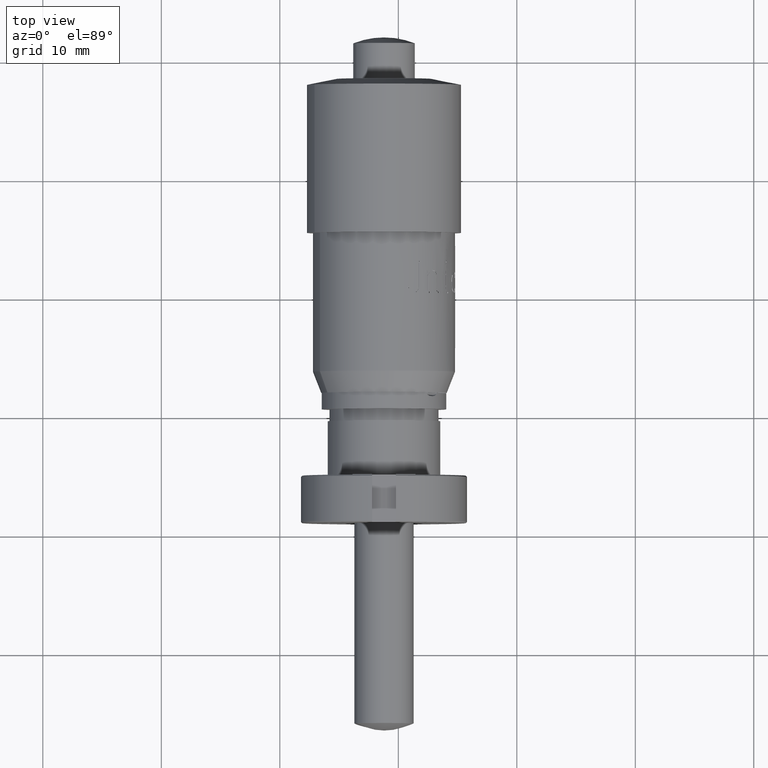
[diagram: clean part render]
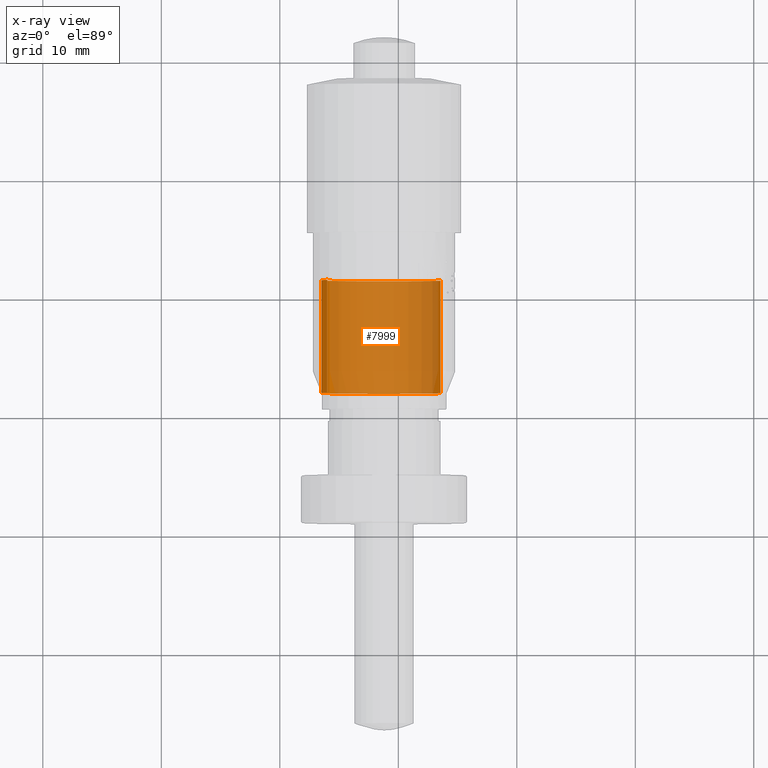
[diagram: x-ray — body ghosted, one internal face saturated and labeled with its STEP entity id]
A machine part, top view, then the same camera in x-ray: the body is ghosted and one INTERNAL B-rep face — a face not visible from any outside direction — is saturated and labeled: STEP entity #7999.
In plain terms, the highlighted cylindrical surface (partial cylindrical patch) has radius 5.3 mm, axis along (0, -1, 0).
Its self-contained STEP definition (entity closure, byte-faithful):
#535 = VERTEX_POINT ( 'NONE', #12551 ) ;
#659 = DIRECTION ( 'NONE',  ( 1.101876641632675700E-016, -1.000000000000000000, 2.975472225002335400E-018 ) ) ;
#1014 = ORIENTED_EDGE ( 'NONE', *, *, #2552, .F. ) ;
#1338 = EDGE_LOOP ( 'NONE', ( #1014, #1872, #1377, #7088 ) ) ;
#1377 = ORIENTED_EDGE ( 'NONE', *, *, #6458, .T. ) ;
#1767 = CARTESIAN_POINT ( 'NONE',  ( 18.79276886405924400, 21.53603129132213600, 18.60546483943821600 ) ) ;
#1872 = ORIENTED_EDGE ( 'NONE', *, *, #5190, .T. ) ;
#2101 = LINE ( 'NONE', #12429, #10293 ) ;
#2443 = CIRCLE ( 'NONE', #7489, 5.300000000000006900 ) ;
#2552 = EDGE_CURVE ( 'NONE', #8329, #7935, #2443, .T. ) ;
#2833 = DIRECTION ( 'NONE',  ( 0.9019442983237868600, 0.0000000000000000000, -0.4318523853369479200 ) ) ;
#3334 = AXIS2_PLACEMENT_3D ( 'NONE', #5295, #12837, #6356 ) ;
#5190 = EDGE_CURVE ( 'NONE', #8329, #12205, #6564, .T. ) ;
#5295 = CARTESIAN_POINT ( 'NONE',  ( 18.79276886405920500, 12.03603129132215700, 18.60546483943822300 ) ) ;
#5386 = CARTESIAN_POINT ( 'NONE',  ( 23.57307364517532400, 21.53603129132213600, 16.31664719715238800 ) ) ;
#6093 = FACE_OUTER_BOUND ( 'NONE', #1338, .T. ) ;
#6356 = DIRECTION ( 'NONE',  ( 0.9019442983237868600, 0.0000000000000000000, -0.4318523853369479200 ) ) ;
#6458 = EDGE_CURVE ( 'NONE', #12205, #535, #10632, .T. ) ;
#6547 = AXIS2_PLACEMENT_3D ( 'NONE', #13073, #11859, #13114 ) ;
#6564 = LINE ( 'NONE', #7211, #9100 ) ;
#7088 = ORIENTED_EDGE ( 'NONE', *, *, #7718, .F. ) ;
#7211 = CARTESIAN_POINT ( 'NONE',  ( 14.01246408294316800, 21.53603129132213600, 20.89428248172404400 ) ) ;
#7489 = AXIS2_PLACEMENT_3D ( 'NONE', #1767, #9252, #2833 ) ;
#7718 = EDGE_CURVE ( 'NONE', #7935, #535, #2101, .T. ) ;
#7935 = VERTEX_POINT ( 'NONE', #5386 ) ;
#7999 = ADVANCED_FACE ( 'NONE', ( #6093 ), #10500, .F. ) ;
#8329 = VERTEX_POINT ( 'NONE', #12913 ) ;
#8424 = CARTESIAN_POINT ( 'NONE',  ( 14.01246408294313600, 12.03603129132215700, 20.89428248172405500 ) ) ;
#9100 = VECTOR ( 'NONE', #11540, 1000.000000000000000 ) ;
#9252 = DIRECTION ( 'NONE',  ( 1.101876641632675700E-016, -1.000000000000000000, 2.975472225002335400E-018 ) ) ;
#10293 = VECTOR ( 'NONE', #659, 1000.000000000000000 ) ;
#10500 = CYLINDRICAL_SURFACE ( 'NONE', #6547, 5.300000000000006900 ) ;
#10632 = CIRCLE ( 'NONE', #3334, 5.300000000000006900 ) ;
#11540 = DIRECTION ( 'NONE',  ( 1.101876641632675700E-016, -1.000000000000000000, 2.975472225002335400E-018 ) ) ;
#11859 = DIRECTION ( 'NONE',  ( 1.101876641632675700E-016, -1.000000000000000000, 2.975472225002335400E-018 ) ) ;
#12205 = VERTEX_POINT ( 'NONE', #8424 ) ;
#12429 = CARTESIAN_POINT ( 'NONE',  ( 23.57307364517532400, 21.53603129132213600, 16.31664719715238800 ) ) ;
#12551 = CARTESIAN_POINT ( 'NONE',  ( 23.57307364517528100, 12.03603129132215700, 16.31664719715239500 ) ) ;
#12837 = DIRECTION ( 'NONE',  ( 1.101876641632675700E-016, -1.000000000000000000, 2.975472225002335400E-018 ) ) ;
#12913 = CARTESIAN_POINT ( 'NONE',  ( 14.01246408294317400, 21.53603129132213600, 20.89428248172404100 ) ) ;
#13073 = CARTESIAN_POINT ( 'NONE',  ( 18.79276886405924400, 21.53603129132213600, 18.60546483943821600 ) ) ;
#13114 = DIRECTION ( 'NONE',  ( 0.9019442983237868600, 0.0000000000000000000, -0.4318523853369479200 ) ) ;